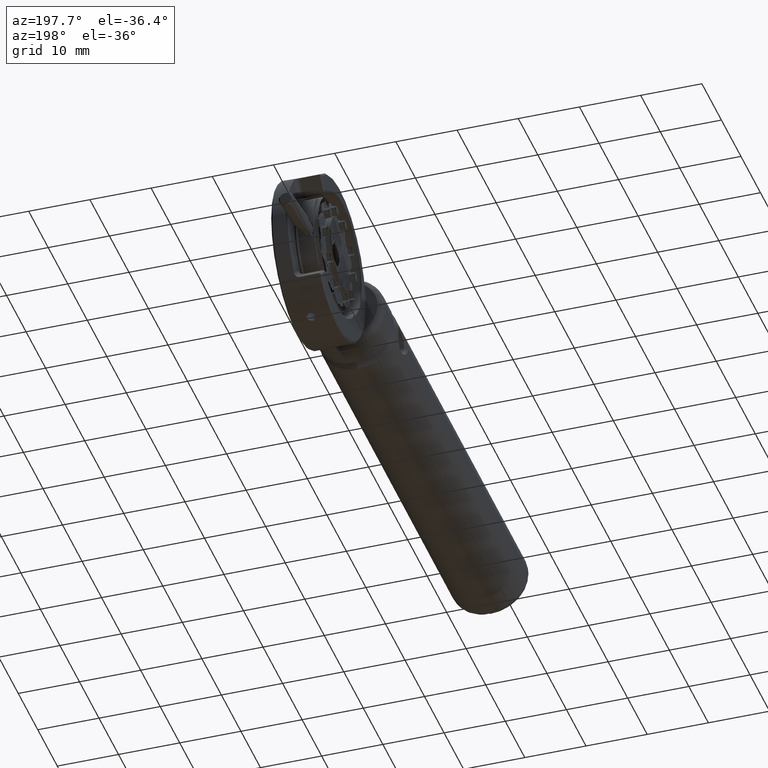
[diagram: clean part render]
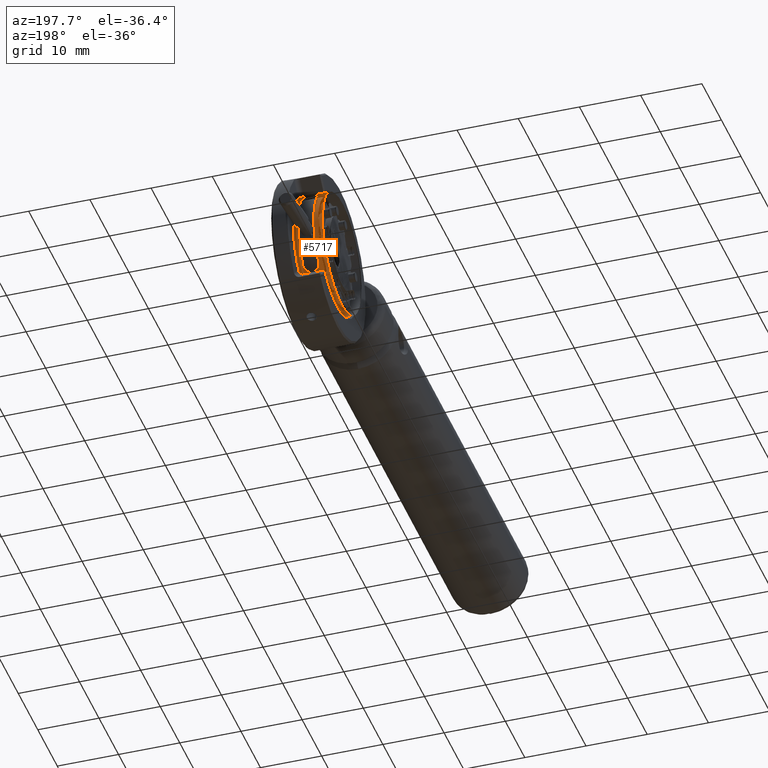
[diagram: same view with one face highlighted and labeled with its STEP entity id]
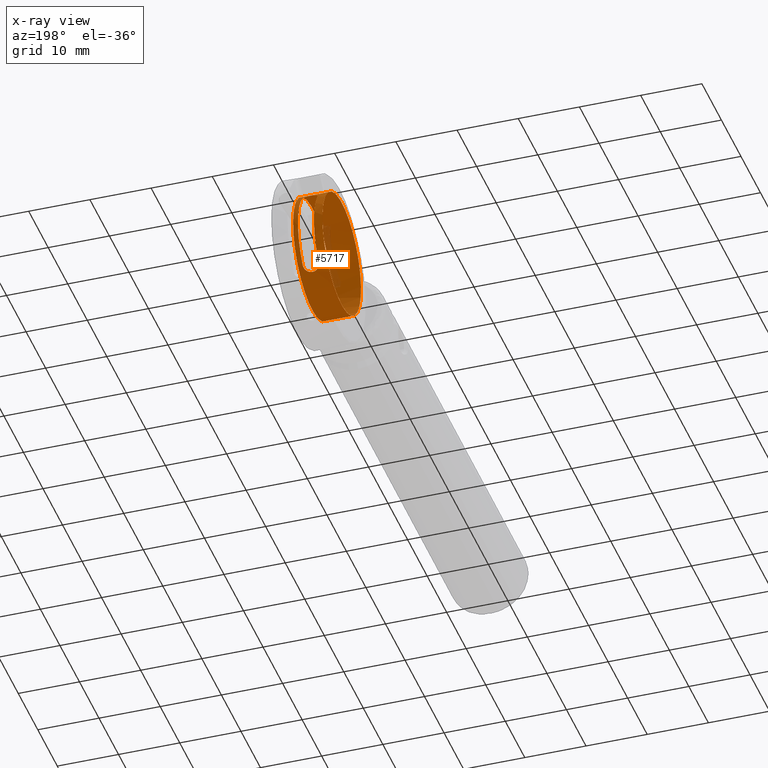
[diagram: x-ray of the same camera — body ghosted, the highlighted face saturated]
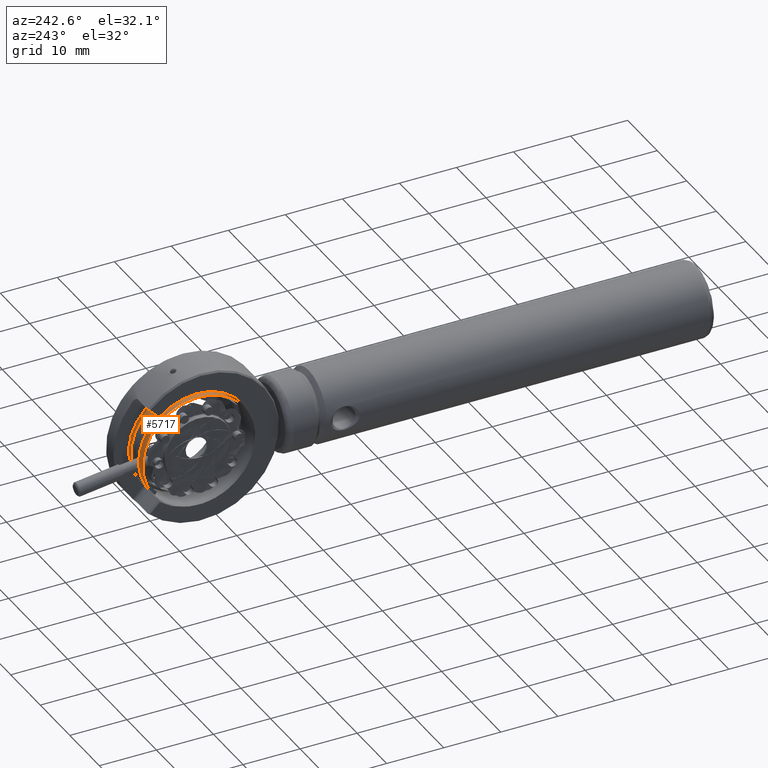
[diagram: same view with one face highlighted and labeled with its STEP entity id]
A machine part, auxiliary view. The second image highlights one B-rep face of the part: STEP entity #5717.
The next image is the same camera in x-ray: the body ghosted, the highlighted face saturated — about 7% of this face is hidden behind the body in this view.
A second angle (auxiliary view) of the same face is appended — the face is thin or edge-on in the first view.
In plain terms, the highlighted cylindrical surface (bore or boss wall) has radius 9.875 mm, axis along (-1, -0, -0).
Its self-contained STEP definition (entity closure, byte-faithful):
#281 = CARTESIAN_POINT ( 'NONE',  ( 7.200653234236467526, 12.87464560808968095, -24.27645059680244444 ) ) ;
#337 = CARTESIAN_POINT ( 'NONE',  ( 5.761753611290108879, 12.25812528458479100, -23.52566914928317487 ) ) ;
#385 = VERTEX_POINT ( 'NONE', #4007 ) ;
#458 = CARTESIAN_POINT ( 'NONE',  ( 4.634389209459751413, 12.34297130489995986, -36.68101834747720602 ) ) ;
#883 = CARTESIAN_POINT ( 'NONE',  ( 5.354950049376687282, 11.51033306070450379, -37.51879459021324692 ) ) ;
#1220 = CARTESIAN_POINT ( 'NONE',  ( 6.513828369533475104, 12.34772900051772737, -23.62598921416908837 ) ) ;
#1332 = VERTEX_POINT ( 'NONE', #6938 ) ;
#1528 = CARTESIAN_POINT ( 'NONE',  ( 7.234384792395060160, 12.22872372693572096, -36.81061673597540818 ) ) ;
#1582 = CARTESIAN_POINT ( 'NONE',  ( 4.892493281107929803, 11.78578740584028850, -37.26437430777665583 ) ) ;
#1599 = EDGE_CURVE ( 'NONE', #1332, #1809, #3720, .T. ) ;
#1600 = B_SPLINE_CURVE_WITH_KNOTS ( 'NONE', 3,
 ( #8612, #9334, #281, #4915, #2946, #11339, #5757, #6589, #1220, #2286, #6822, #337, #6760, #8448, #3850, #4856, #10332, #10219, #9387, #3903 ),
 .UNSPECIFIED., .F., .F.,
 ( 4, 2, 2, 2, 2, 2, 2, 2, 2, 4 ),
 ( 1.852135586730027346E-15, 0.0005153051222240654771, 0.001030610244446278703, 0.001288262805557386075, 0.001545915366668493881, 0.002061220488890707324, 0.002576525611112920333, 0.003091830733335134210, 0.003607135855557347219, 0.004122440977779560228 ),
 .UNSPECIFIED. ) ;
#1770 = CARTESIAN_POINT ( 'NONE',  ( 7.234389209534713316, 12.34297130492807959, -36.68101834750199686 ) ) ;
#1809 = VERTEX_POINT ( 'NONE', #7998 ) ;
#2156 = DIRECTION ( 'NONE',  ( 0.000000000000000000, 0.06016631361091302754, 0.9981883663449866440 ) ) ;
#2286 = CARTESIAN_POINT ( 'NONE',  ( 6.276864333985230360, 12.28150195608300876, -23.55126344513017500 ) ) ;
#2419 = VERTEX_POINT ( 'NONE', #458 ) ;
#2485 = CARTESIAN_POINT ( 'NONE',  ( 6.737054999975675251, 11.60841347213585806, -37.43102318345657409 ) ) ;
#2526 = EDGE_LOOP ( 'NONE', ( #8795 ) ) ;
#2601 = CARTESIAN_POINT ( 'NONE',  ( 6.976160400925389027, 11.78567788533883665, -37.26447889881508502 ) ) ;
#2619 = AXIS2_PLACEMENT_3D ( 'NONE', #4732, #10146, #2156 ) ;
#2652 = AXIS2_PLACEMENT_3D ( 'NONE', #4596, #6444, #8238 ) ;
#2839 = CIRCLE ( 'NONE', #2652, 9.875000000000000000 ) ;
#2946 = CARTESIAN_POINT ( 'NONE',  ( 6.976285137790070756, 12.59062946656475468, -23.91165359759509101 ) ) ;
#3009 = AXIS2_PLACEMENT_3D ( 'NONE', #3105, #9252, #6635 ) ;
#3105 = CARTESIAN_POINT ( 'NONE',  ( 8.034389209459757097, 4.935375810991229351, -30.15084576180819198 ) ) ;
#3280 = EDGE_LOOP ( 'NONE', ( #9961 ) ) ;
#3320 = CARTESIAN_POINT ( 'NONE',  ( 8.134389209459747860, 4.935375810991229351, -30.15084576180819198 ) ) ;
#3336 = EDGE_CURVE ( 'NONE', #2419, #1332, #4776, .T. ) ;
#3556 = CARTESIAN_POINT ( 'NONE',  ( 5.071861741350091712, 11.65278430365071038, -37.38933653965919035 ) ) ;
#3720 = CIRCLE ( 'NONE', #9612, 9.875000000000000000 ) ;
#3801 = AXIS2_PLACEMENT_3D ( 'NONE', #3320, #9525, #7028 ) ;
#3850 = CARTESIAN_POINT ( 'NONE',  ( 5.131723418966265271, 12.43455668272756753, -23.72490605070625946 ) ) ;
#3903 = CARTESIAN_POINT ( 'NONE',  ( 4.634389209437602908, 13.07370978607089640, -24.55771201496608214 ) ) ;
#4007 = CARTESIAN_POINT ( 'NONE',  ( 3.234389209459744841, 4.341233464083463112, -40.00795587946493725 ) ) ;
#4055 = CARTESIAN_POINT ( 'NONE',  ( 7.234389209534713316, 4.935375810991229351, -30.15084576180819198 ) ) ;
#4081 = EDGE_CURVE ( 'NONE', #6636, #6636, #10038, .T. ) ;
#4148 = EDGE_CURVE ( 'NONE', #11778, #2419, #6050, .T. ) ;
#4231 = DIRECTION ( 'NONE',  ( 1.000000000000000000, 1.399727883735550094E-17, 1.375382564234869832E-17 ) ) ;
#4280 = FACE_OUTER_BOUND ( 'NONE', #2526, .T. ) ;
#4339 = CARTESIAN_POINT ( 'NONE',  ( 5.138707201452369588, 11.61172136887721607, -37.42713180490938640 ) ) ;
#4362 = ORIENTED_EDGE ( 'NONE', *, *, #1599, .F. ) ;
#4456 = CARTESIAN_POINT ( 'NONE',  ( 4.634389209459751413, 12.34297130489995986, -36.68101834747720602 ) ) ;
#4516 = CARTESIAN_POINT ( 'NONE',  ( 6.107024807637975172, 11.40932816570636099, -37.60762562372192264 ) ) ;
#4596 = CARTESIAN_POINT ( 'NONE',  ( 3.234389209459745285, 4.935375810991229351, -30.15084576180819198 ) ) ;
#4732 = CARTESIAN_POINT ( 'NONE',  ( 4.634389209459752301, 4.935375810991229351, -30.15084576180819198 ) ) ;
#4745 = EDGE_CURVE ( 'NONE', #1809, #11778, #1600, .T. ) ;
#4776 = B_SPLINE_CURVE_WITH_KNOTS ( 'NONE', 3,
 ( #4456, #8158, #10586, #6065, #1582, #3556, #4339, #6956, #883, #9932, #7080, #4516, #7985, #9807, #2485, #2601, #10765, #10834, #1528, #1770 ),
 .UNSPECIFIED., .F., .F.,
 ( 4, 2, 2, 2, 2, 2, 2, 2, 2, 4 ),
 ( 7.989938083193794263E-15, 0.0005153051222422608832, 0.001030610244476531847, 0.001288262805593673455, 0.001545915366710815496, 0.002061220488945104783, 0.002576525611179394069, 0.003091830733413683356, 0.003607135855647972643, 0.004122440977882261930 ),
 .UNSPECIFIED. ) ;
#4856 = CARTESIAN_POINT ( 'NONE',  ( 4.892618018021176240, 12.59053330189759556, -23.91153660877264286 ) ) ;
#4915 = CARTESIAN_POINT ( 'NONE',  ( 7.072397366232621607, 12.68290658480689181, -24.02579144575988579 ) ) ;
#5465 = EDGE_CURVE ( 'NONE', #385, #385, #2839, .T. ) ;
#5717 = ADVANCED_FACE ( 'NONE', ( #4280, #9699, #11488 ), #11370, .F. ) ;
#5757 = CARTESIAN_POINT ( 'NONE',  ( 6.730071217452371357, 12.43737321890875691, -23.72916658258006706 ) ) ;
#5855 = CARTESIAN_POINT ( 'NONE',  ( 8.034389209459757097, 5.529518157898995590, -20.29373564415144671 ) ) ;
#6050 = CIRCLE ( 'NONE', #2619, 9.875000000000000000 ) ;
#6065 = CARTESIAN_POINT ( 'NONE',  ( 4.796381052662700206, 11.89110606570167228, -37.16214664605711704 ) ) ;
#6392 = CARTESIAN_POINT ( 'NONE',  ( 4.634389209437602908, 13.07370978607089640, -24.55771201496608214 ) ) ;
#6444 = DIRECTION ( 'NONE',  ( -1.000000000000000000, -1.399727883735550094E-17, -1.375382564234869832E-17 ) ) ;
#6589 = CARTESIAN_POINT ( 'NONE',  ( 6.588649039681409469, 12.37459735373320946, -23.65654738343529218 ) ) ;
#6635 = DIRECTION ( 'NONE',  ( 0.000000000000000000, 0.06016631361091302754, 0.9981883663449866440 ) ) ;
#6636 = VERTEX_POINT ( 'NONE', #5855 ) ;
#6760 = CARTESIAN_POINT ( 'NONE',  ( 5.591987094119726720, 12.28149952250263333, -23.55126147304739703 ) ) ;
#6822 = CARTESIAN_POINT ( 'NONE',  ( 6.107212503031749229, 12.25814242583401814, -23.52568809540453643 ) ) ;
#6938 = CARTESIAN_POINT ( 'NONE',  ( 7.234389209534713316, 12.34297130492807959, -36.68101834750199686 ) ) ;
#6956 = CARTESIAN_POINT ( 'NONE',  ( 5.280129379226861985, 11.54067737098495705, -37.49168494346021419 ) ) ;
#7028 = DIRECTION ( 'NONE',  ( 0.000000000000000000, 0.06016631361091302754, 0.9981883663449866440 ) ) ;
#7080 = CARTESIAN_POINT ( 'NONE',  ( 5.761565915888867018, 11.40934745855884103, -37.60760887368549987 ) ) ;
#7985 = CARTESIAN_POINT ( 'NONE',  ( 6.276791324812551309, 11.43560718729371573, -37.58502617553381242 ) ) ;
#7998 = CARTESIAN_POINT ( 'NONE',  ( 7.234389209519377140, 13.07370978608353340, -24.55771201495739930 ) ) ;
#8158 = CARTESIAN_POINT ( 'NONE',  ( 4.634389748905821449, 12.22872148177749452, -36.81061928280302453 ) ) ;
#8238 = DIRECTION ( 'NONE',  ( -4.391705002472929337E-17, -0.06016631361091302754, -0.9981883663449866440 ) ) ;
#8448 = CARTESIAN_POINT ( 'NONE',  ( 5.276250701162312318, 12.36970606394590355, -23.65078575752427525 ) ) ;
#8612 = CARTESIAN_POINT ( 'NONE',  ( 7.234389209519377140, 13.07370978608353340, -24.55771201495739930 ) ) ;
#8795 = ORIENTED_EDGE ( 'NONE', *, *, #4081, .F. ) ;
#9043 = ORIENTED_EDGE ( 'NONE', *, *, #3336, .F. ) ;
#9252 = DIRECTION ( 'NONE',  ( -1.000000000000000000, -1.399727883735550094E-17, -1.375382564234869832E-17 ) ) ;
#9334 = CARTESIAN_POINT ( 'NONE',  ( 7.234388669982999787, 12.97585409651919797, -24.41532631153407351 ) ) ;
#9387 = CARTESIAN_POINT ( 'NONE',  ( 4.634393626555095125, 12.97585601951128176, -24.41532910959907454 ) ) ;
#9525 = DIRECTION ( 'NONE',  ( -1.000000000000000000, -1.399727883735550094E-17, -1.375382564234869832E-17 ) ) ;
#9612 = AXIS2_PLACEMENT_3D ( 'NONE', #4055, #4231, #9643 ) ;
#9643 = DIRECTION ( 'NONE',  ( 0.000000000000000000, 0.06016631361090767072, 0.9981883663449870880 ) ) ;
#9699 = FACE_OUTER_BOUND ( 'NONE', #3280, .T. ) ;
#9807 = CARTESIAN_POINT ( 'NONE',  ( 6.592527717776462737, 11.53512943843891847, -37.49681733991000954 ) ) ;
#9932 = CARTESIAN_POINT ( 'NONE',  ( 5.591914084931111972, 11.43560984012905379, -37.58502451003916178 ) ) ;
#9961 = ORIENTED_EDGE ( 'NONE', *, *, #5465, .T. ) ;
#10038 = CIRCLE ( 'NONE', #3009, 9.875000000000000000 ) ;
#10146 = DIRECTION ( 'NONE',  ( -1.000000000000000000, -1.399727883735550094E-17, -1.375382564234869832E-17 ) ) ;
#10219 = CARTESIAN_POINT ( 'NONE',  ( 4.668117117649249970, 12.87464608683479383, -24.27644980266721930 ) ) ;
#10332 = CARTESIAN_POINT ( 'NONE',  ( 4.796433000791721746, 12.68284050899351101, -24.02570648576938339 ) ) ;
#10412 = ORIENTED_EDGE ( 'NONE', *, *, #4148, .F. ) ;
#10417 = EDGE_LOOP ( 'NONE', ( #11717, #4362, #9043, #10412 ) ) ;
#10586 = CARTESIAN_POINT ( 'NONE',  ( 4.668125184654535964, 12.11156473492728480, -36.93633292145572256 ) ) ;
#10765 = CARTESIAN_POINT ( 'NONE',  ( 7.072345418156528396, 11.89103026334331226, -37.16222305426230577 ) ) ;
#10834 = CARTESIAN_POINT ( 'NONE',  ( 7.200661301301131800, 12.11156511482525033, -36.93633376733914275 ) ) ;
#11339 = CARTESIAN_POINT ( 'NONE',  ( 6.796916677552837349, 12.47359909499408381, -23.77162047037940695 ) ) ;
#11370 = CYLINDRICAL_SURFACE ( 'NONE', #3801, 9.875000000000000000 ) ;
#11488 = FACE_BOUND ( 'NONE', #10417, .T. ) ;
#11717 = ORIENTED_EDGE ( 'NONE', *, *, #4745, .F. ) ;
#11778 = VERTEX_POINT ( 'NONE', #6392 ) ;